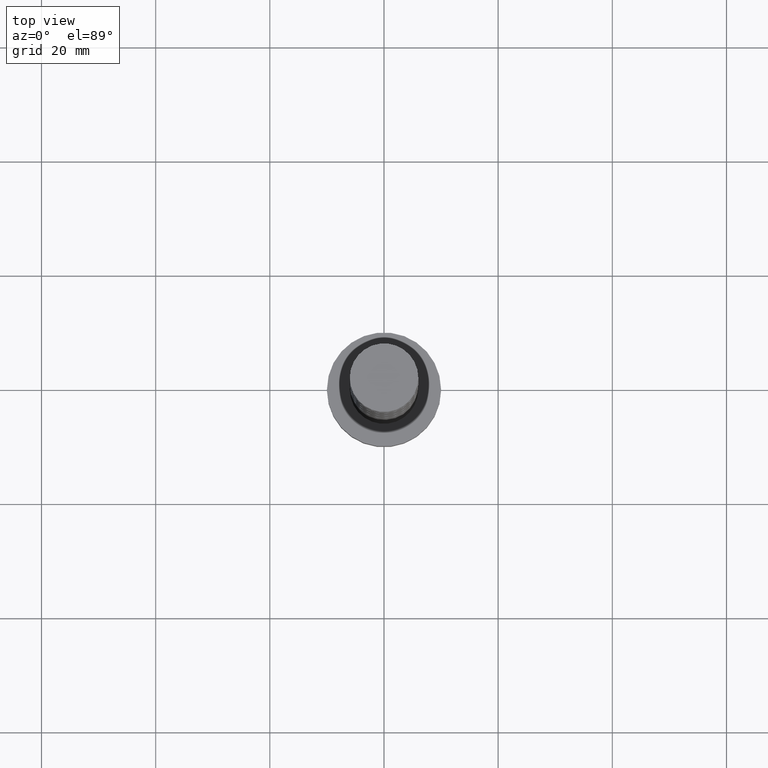
[diagram: clean part render]
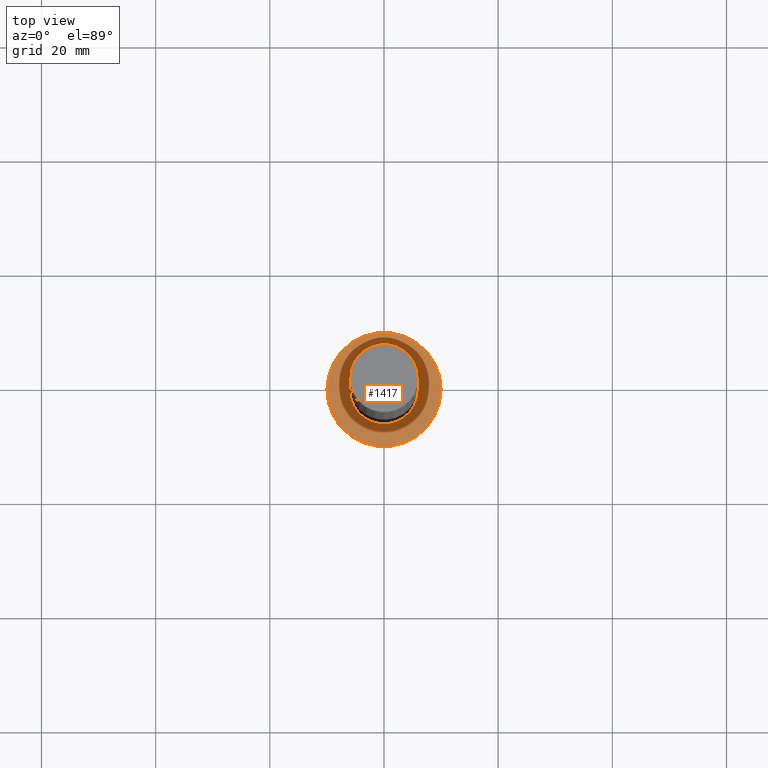
[diagram: same view with one face highlighted and labeled with its STEP entity id]
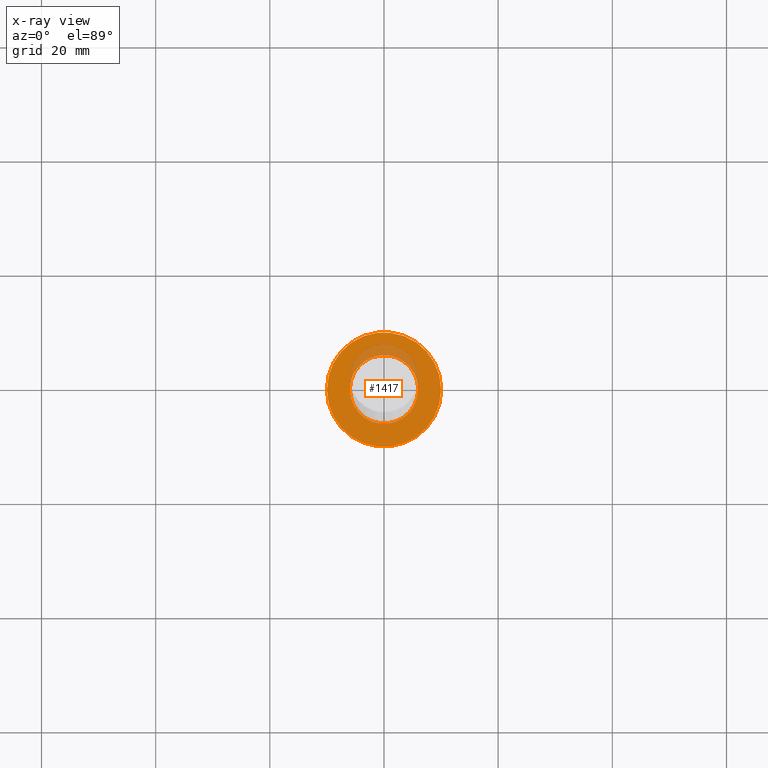
[diagram: x-ray of the same camera — body ghosted, the highlighted face saturated]
A machine part, top view. The second image highlights one B-rep face of the part: STEP entity #1417.
The next image is the same camera in x-ray: the body ghosted, the highlighted face saturated — about 12% of this face is hidden behind the body in this view.
In plain terms, the highlighted planar face has unit normal (0, 0, 1).
Its self-contained STEP definition (entity closure, byte-faithful):
#25 = DIRECTION ( 'NONE',  ( 0.000000000000000000, 0.000000000000000000, 1.000000000000000000 ) ) ;
#32 = ORIENTED_EDGE ( 'NONE', *, *, #235, .F. ) ;
#36 = ORIENTED_EDGE ( 'NONE', *, *, #1574, .F. ) ;
#87 = CIRCLE ( 'NONE', #500, 6.000000000000000888 ) ;
#126 = VERTEX_POINT ( 'NONE', #1299 ) ;
#155 = CARTESIAN_POINT ( 'NONE',  ( 0.000000000000000000, 0.000000000000000000, 7.000000000000000000 ) ) ;
#161 = VERTEX_POINT ( 'NONE', #600 ) ;
#162 = EDGE_CURVE ( 'NONE', #126, #1344, #577, .T. ) ;
#218 = EDGE_LOOP ( 'NONE', ( #36, #32 ) ) ;
#220 = AXIS2_PLACEMENT_3D ( 'NONE', #707, #1191, #573 ) ;
#235 = EDGE_CURVE ( 'NONE', #161, #392, #87, .T. ) ;
#322 = DIRECTION ( 'NONE',  ( 0.000000000000000000, 0.000000000000000000, 1.000000000000000000 ) ) ;
#327 = PLANE ( 'NONE',  #220 ) ;
#353 = EDGE_LOOP ( 'NONE', ( #1209, #690 ) ) ;
#368 = AXIS2_PLACEMENT_3D ( 'NONE', #719, #322, #825 ) ;
#392 = VERTEX_POINT ( 'NONE', #1266 ) ;
#420 = EDGE_CURVE ( 'NONE', #1344, #126, #1000, .T. ) ;
#486 = CARTESIAN_POINT ( 'NONE',  ( 0.000000000000000000, 0.000000000000000000, 7.000000000000000000 ) ) ;
#500 = AXIS2_PLACEMENT_3D ( 'NONE', #155, #556, #1168 ) ;
#512 = DIRECTION ( 'NONE',  ( 1.000000000000000000, 0.000000000000000000, 0.000000000000000000 ) ) ;
#556 = DIRECTION ( 'NONE',  ( 0.000000000000000000, 0.000000000000000000, 1.000000000000000000 ) ) ;
#573 = DIRECTION ( 'NONE',  ( 1.000000000000000000, 0.000000000000000000, -0.000000000000000000 ) ) ;
#577 = CIRCLE ( 'NONE', #737, 10.00000000000000000 ) ;
#600 = CARTESIAN_POINT ( 'NONE',  ( 6.000000000000000888, 7.347880794884120722E-16, 7.000000000000000000 ) ) ;
#603 = CARTESIAN_POINT ( 'NONE',  ( 0.000000000000000000, 0.000000000000000000, 7.000000000000000000 ) ) ;
#690 = ORIENTED_EDGE ( 'NONE', *, *, #420, .T. ) ;
#707 = CARTESIAN_POINT ( 'NONE',  ( 0.000000000000000000, 0.000000000000000000, 7.000000000000000000 ) ) ;
#719 = CARTESIAN_POINT ( 'NONE',  ( 0.000000000000000000, 0.000000000000000000, 7.000000000000000000 ) ) ;
#737 = AXIS2_PLACEMENT_3D ( 'NONE', #486, #25, #512 ) ;
#825 = DIRECTION ( 'NONE',  ( 1.000000000000000000, 0.000000000000000000, 0.000000000000000000 ) ) ;
#835 = FACE_OUTER_BOUND ( 'NONE', #353, .T. ) ;
#884 = DIRECTION ( 'NONE',  ( 0.000000000000000000, 0.000000000000000000, 1.000000000000000000 ) ) ;
#1000 = CIRCLE ( 'NONE', #368, 10.00000000000000000 ) ;
#1032 = AXIS2_PLACEMENT_3D ( 'NONE', #603, #884, #1467 ) ;
#1168 = DIRECTION ( 'NONE',  ( 1.000000000000000000, 0.000000000000000000, 0.000000000000000000 ) ) ;
#1174 = CARTESIAN_POINT ( 'NONE',  ( 10.00000000000000000, 1.224646799147353256E-15, 7.000000000000000000 ) ) ;
#1191 = DIRECTION ( 'NONE',  ( 0.000000000000000000, 0.000000000000000000, 1.000000000000000000 ) ) ;
#1209 = ORIENTED_EDGE ( 'NONE', *, *, #162, .T. ) ;
#1266 = CARTESIAN_POINT ( 'NONE',  ( -6.000000000000000888, 0.000000000000000000, 7.000000000000000000 ) ) ;
#1299 = CARTESIAN_POINT ( 'NONE',  ( -10.00000000000000000, 0.000000000000000000, 7.000000000000000000 ) ) ;
#1344 = VERTEX_POINT ( 'NONE', #1174 ) ;
#1372 = CIRCLE ( 'NONE', #1032, 6.000000000000000888 ) ;
#1417 = ADVANCED_FACE ( 'NONE', ( #1533, #835 ), #327, .T. ) ;
#1467 = DIRECTION ( 'NONE',  ( 1.000000000000000000, 0.000000000000000000, 0.000000000000000000 ) ) ;
#1533 = FACE_BOUND ( 'NONE', #218, .T. ) ;
#1574 = EDGE_CURVE ( 'NONE', #392, #161, #1372, .T. ) ;